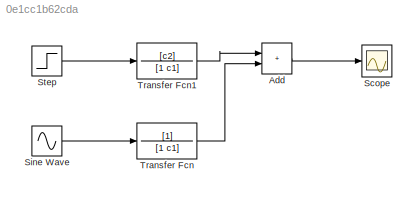
MODEL slx_0e1cc1b62cda
KIND model
CONFIG AbsTol = auto
CONFIG EnableMultiTasking = off
CONFIG FixedStep = auto
CONFIG MaxStep = auto
CONFIG MinStep = auto
CONFIG RelTol = 1e-3
CONFIG SampleTimeConstraint = Unconstrained
CONFIG SolverName = VariableStepAuto
CONFIG StartTime = 0.0
CONFIG StopTime = 5
BLOCK [Sum] Add
  IconShape = rectangular
  Ports = [2, 1]
BLOCK [Scope] Scope
  Floating = off
  NumInputPorts = 1
  Ports = [1]
  ScopeSpecificationString = Simulink.scopes.TimeScopeBlockCfg('CurrentConfiguration', extmgr.ConfigurationSet(extmgr.Configuration('Core','General UI',true),extmgr.Configuration('Core','Source UI',true),extmgr.Configuration('Sources','WiredSimulink',true),extmgr.Configuration('Visuals','Time Domain',true,'SerializedDisplays',{struct('MinYLimReal','-0.03403','MaxYLimReal','0.30628','YLabelReal','','MinYLimMag','0.00000','MaxY...<+1402ch>
BLOCK [Sin] Sine Wave
  Amplitude = -0.2
  Frequency = 4*pi*(10^6)
  Phase = -pi/2
  Ports = [0, 1]
  SampleTime = 0
BLOCK [Step] Step
  After = 5
  SampleTime = 0
BLOCK [TransferFcn] Transfer Fcn
  Denominator = [1 c1]
BLOCK [TransferFcn] Transfer Fcn1
  Denominator = [1 c1]
  Numerator = [c2]
LINE Add:1 -> Scope:1
LINE Sine Wave:1 -> Transfer Fcn:1
LINE Step:1 -> Transfer Fcn1:1
LINE Transfer Fcn1:1 -> Add:1
LINE Transfer Fcn:1 -> Add:2
